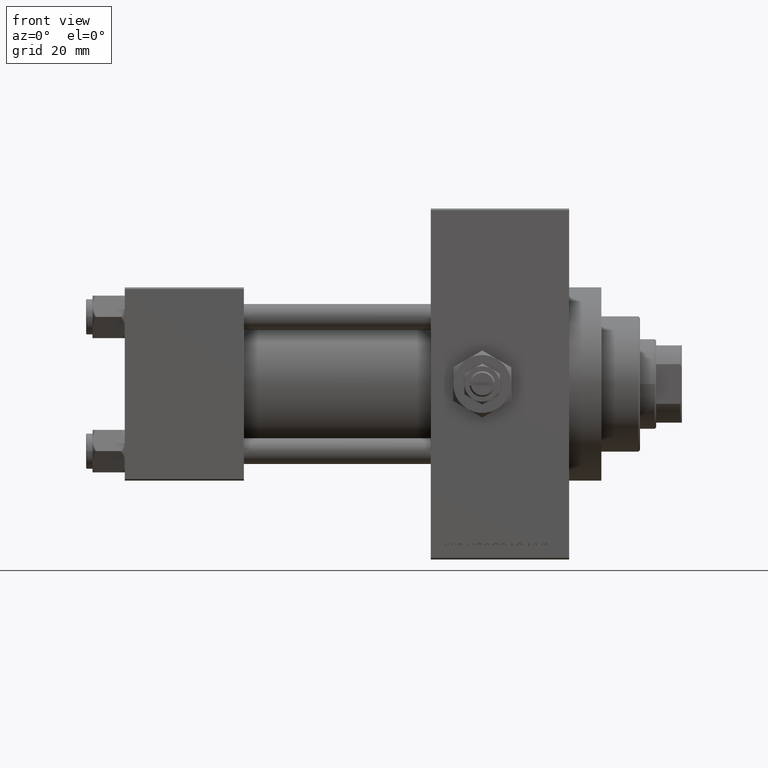
[diagram: clean part render]
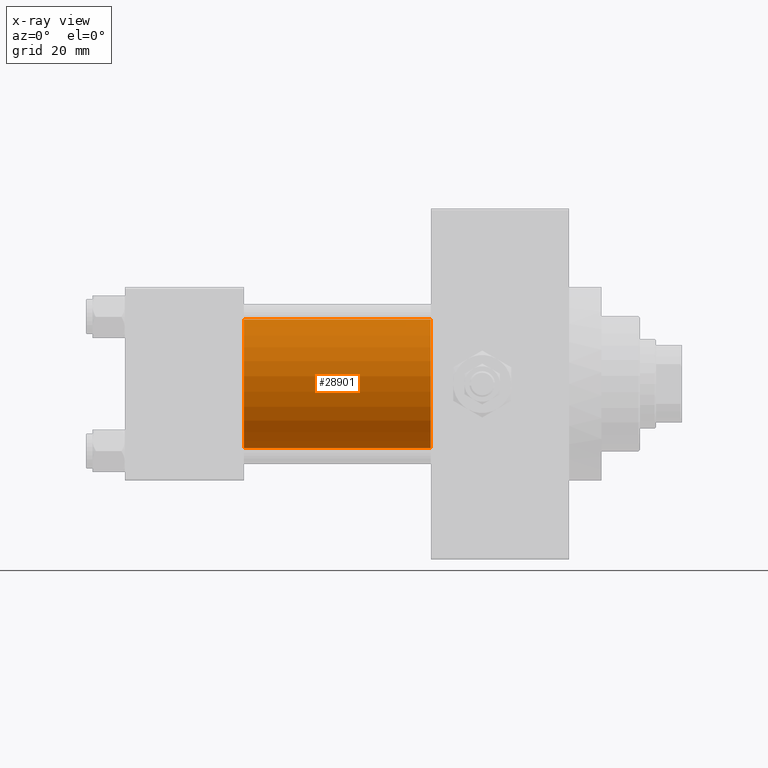
[diagram: x-ray — body ghosted, one internal face saturated and labeled with its STEP entity id]
A machine part, front view, then the same camera in x-ray: the body is ghosted and one INTERNAL B-rep face — a face not visible from any outside direction — is saturated and labeled: STEP entity #28901.
In plain terms, the highlighted cylindrical surface (partial cylindrical patch) has radius 20 mm, axis along (-1, -0, -0).
Its self-contained STEP definition (entity closure, byte-faithful):
#1168 = CARTESIAN_POINT ( 'NONE',  ( 95.00000000000000000, -2.602085213965210642E-15, 20.00000000000000000 ) ) ;
#8175 = VERTEX_POINT ( 'NONE', #44551 ) ;
#9475 = EDGE_CURVE ( 'NONE', #43721, #8175, #28759, .T. ) ;
#12149 = ORIENTED_EDGE ( 'NONE', *, *, #19433, .F. ) ;
#14396 = ORIENTED_EDGE ( 'NONE', *, *, #42089, .T. ) ;
#14573 = DIRECTION ( 'NONE',  ( 0.000000000000000000, 0.000000000000000000, -1.000000000000000000 ) ) ;
#16718 = ORIENTED_EDGE ( 'NONE', *, *, #9475, .T. ) ;
#19433 = EDGE_CURVE ( 'NONE', #47491, #8175, #45418, .T. ) ;
#21863 = EDGE_CURVE ( 'NONE', #38972, #47491, #33773, .T. ) ;
#23620 = CARTESIAN_POINT ( 'NONE',  ( 95.00000000000000000, -2.602085213965210642E-15, 0.000000000000000000 ) ) ;
#25295 = CARTESIAN_POINT ( 'NONE',  ( 95.00000000000000000, -1.527916156705046464E-16, -20.00000000000000000 ) ) ;
#25681 = DIRECTION ( 'NONE',  ( 1.000000000000000000, 0.000000000000000000, 0.000000000000000000 ) ) ;
#25818 = VECTOR ( 'NONE', #34020, 1000.000000000000000 ) ;
#26168 = DIRECTION ( 'NONE',  ( 0.000000000000000000, 0.000000000000000000, -1.000000000000000000 ) ) ;
#28106 = CARTESIAN_POINT ( 'NONE',  ( 95.00000000000000000, -2.602085213965210642E-15, 20.00000000000000000 ) ) ;
#28759 = LINE ( 'NONE', #25295, #30242 ) ;
#28901 = ADVANCED_FACE ( 'NONE', ( #41621 ), #30289, .F. ) ;
#29861 = AXIS2_PLACEMENT_3D ( 'NONE', #48316, #41429, #14573 ) ;
#30242 = VECTOR ( 'NONE', #48186, 1000.000000000000000 ) ;
#30289 = CYLINDRICAL_SURFACE ( 'NONE', #34626, 20.00000000000000000 ) ;
#33572 = CARTESIAN_POINT ( 'NONE',  ( 37.00000000000000000, -2.602085213965210642E-15, 0.000000000000000000 ) ) ;
#33773 = LINE ( 'NONE', #1168, #25818 ) ;
#34020 = DIRECTION ( 'NONE',  ( -1.000000000000000000, -0.000000000000000000, -0.000000000000000000 ) ) ;
#34626 = AXIS2_PLACEMENT_3D ( 'NONE', #23620, #45799, #34723 ) ;
#34723 = DIRECTION ( 'NONE',  ( 0.000000000000000000, 0.000000000000000000, 1.000000000000000000 ) ) ;
#35191 = CARTESIAN_POINT ( 'NONE',  ( 37.00000000000000000, -2.602085213965210642E-15, 20.00000000000000000 ) ) ;
#35882 = CARTESIAN_POINT ( 'NONE',  ( 95.00000000000000000, -1.527916156705046464E-16, -20.00000000000000000 ) ) ;
#38972 = VERTEX_POINT ( 'NONE', #28106 ) ;
#41429 = DIRECTION ( 'NONE',  ( 1.000000000000000000, 0.000000000000000000, 0.000000000000000000 ) ) ;
#41485 = AXIS2_PLACEMENT_3D ( 'NONE', #33572, #25681, #26168 ) ;
#41621 = FACE_OUTER_BOUND ( 'NONE', #45325, .T. ) ;
#42089 = EDGE_CURVE ( 'NONE', #38972, #43721, #44782, .T. ) ;
#43721 = VERTEX_POINT ( 'NONE', #35882 ) ;
#44551 = CARTESIAN_POINT ( 'NONE',  ( 37.00000000000000000, -1.527916156705046464E-16, -20.00000000000000000 ) ) ;
#44782 = CIRCLE ( 'NONE', #29861, 20.00000000000000000 ) ;
#45325 = EDGE_LOOP ( 'NONE', ( #14396, #16718, #12149, #46869 ) ) ;
#45418 = CIRCLE ( 'NONE', #41485, 20.00000000000000000 ) ;
#45799 = DIRECTION ( 'NONE',  ( -1.000000000000000000, -0.000000000000000000, -0.000000000000000000 ) ) ;
#46869 = ORIENTED_EDGE ( 'NONE', *, *, #21863, .F. ) ;
#47491 = VERTEX_POINT ( 'NONE', #35191 ) ;
#48186 = DIRECTION ( 'NONE',  ( -1.000000000000000000, -0.000000000000000000, -0.000000000000000000 ) ) ;
#48316 = CARTESIAN_POINT ( 'NONE',  ( 95.00000000000000000, -2.602085213965210642E-15, 0.000000000000000000 ) ) ;